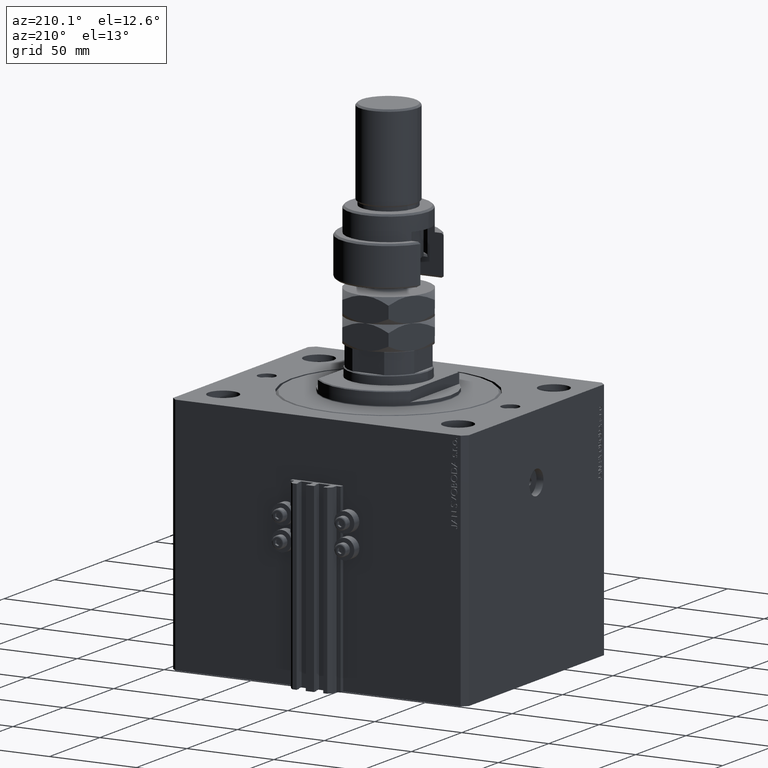
[diagram: clean part render]
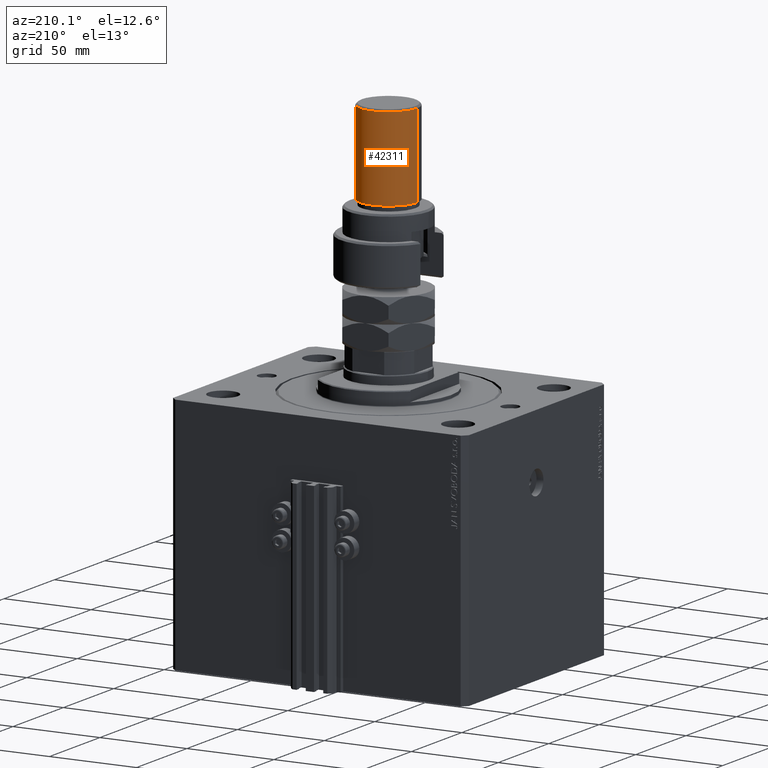
[diagram: same view with one face highlighted and labeled with its STEP entity id]
A machine part, auxiliary view. The second image highlights one B-rep face of the part: STEP entity #42311.
In plain terms, the highlighted cylindrical surface (edge-blend (fillet) strip) has radius 16.5 mm, axis along (-0, -0, -1).
Its self-contained STEP definition (entity closure, byte-faithful):
#270 = VECTOR ( 'NONE', #20096, 1000.000000000000000 ) ;
#1097 = FACE_OUTER_BOUND ( 'NONE', #27945, .T. ) ;
#3515 = ORIENTED_EDGE ( 'NONE', *, *, #8554, .T. ) ;
#4058 = LINE ( 'NONE', #31200, #29764 ) ;
#5134 = DIRECTION ( 'NONE',  ( -0.000000000000000000, -0.000000000000000000, -1.000000000000000000 ) ) ;
#5279 = ORIENTED_EDGE ( 'NONE', *, *, #39434, .T. ) ;
#8459 = VERTEX_POINT ( 'NONE', #29570 ) ;
#8554 = EDGE_CURVE ( 'NONE', #34538, #39394, #39977, .T. ) ;
#8930 = CARTESIAN_POINT ( 'NONE',  ( -16.50000000000000000, 0.000000000000000000, 89.00000000000000000 ) ) ;
#15451 = VERTEX_POINT ( 'NONE', #26205 ) ;
#16285 = LINE ( 'NONE', #8930, #270 ) ;
#18100 = AXIS2_PLACEMENT_3D ( 'NONE', #18893, #37946, #37444 ) ;
#18893 = CARTESIAN_POINT ( 'NONE',  ( 0.000000000000000000, 0.000000000000000000, 39.99999999999998579 ) ) ;
#20096 = DIRECTION ( 'NONE',  ( -0.000000000000000000, -0.000000000000000000, -1.000000000000000000 ) ) ;
#25167 = DIRECTION ( 'NONE',  ( -1.000000000000000000, 0.000000000000000000, 0.000000000000000000 ) ) ;
#25243 = ORIENTED_EDGE ( 'NONE', *, *, #30355, .F. ) ;
#26205 = CARTESIAN_POINT ( 'NONE',  ( 16.50000000000000000, 2.020667218593133100E-15, 88.00000000000001421 ) ) ;
#26285 = CARTESIAN_POINT ( 'NONE',  ( 16.50000000000000000, 2.020667218593133100E-15, 39.99999999999998579 ) ) ;
#26356 = AXIS2_PLACEMENT_3D ( 'NONE', #39735, #31366, #27802 ) ;
#27802 = DIRECTION ( 'NONE',  ( 1.000000000000000000, 0.000000000000000000, 0.000000000000000000 ) ) ;
#27945 = EDGE_LOOP ( 'NONE', ( #5279, #46407, #3515, #25243 ) ) ;
#29570 = CARTESIAN_POINT ( 'NONE',  ( -16.50000000000000000, 0.000000000000000000, 88.00000000000001421 ) ) ;
#29764 = VECTOR ( 'NONE', #46155, 1000.000000000000000 ) ;
#30355 = EDGE_CURVE ( 'NONE', #8459, #39394, #16285, .T. ) ;
#31200 = CARTESIAN_POINT ( 'NONE',  ( 16.50000000000000000, 2.020667218593133100E-15, 89.00000000000000000 ) ) ;
#31366 = DIRECTION ( 'NONE',  ( 0.000000000000000000, 0.000000000000000000, -1.000000000000000000 ) ) ;
#32037 = CYLINDRICAL_SURFACE ( 'NONE', #49127, 16.50000000000000000 ) ;
#34538 = VERTEX_POINT ( 'NONE', #26285 ) ;
#37444 = DIRECTION ( 'NONE',  ( 1.000000000000000000, 0.000000000000000000, 0.000000000000000000 ) ) ;
#37946 = DIRECTION ( 'NONE',  ( -0.000000000000000000, -0.000000000000000000, 1.000000000000000000 ) ) ;
#39394 = VERTEX_POINT ( 'NONE', #42531 ) ;
#39434 = EDGE_CURVE ( 'NONE', #8459, #15451, #48216, .T. ) ;
#39735 = CARTESIAN_POINT ( 'NONE',  ( 0.000000000000000000, 0.000000000000000000, 88.00000000000001421 ) ) ;
#39977 = CIRCLE ( 'NONE', #18100, 16.50000000000000000 ) ;
#42311 = ADVANCED_FACE ( 'NONE', ( #1097 ), #32037, .T. ) ;
#42531 = CARTESIAN_POINT ( 'NONE',  ( -16.50000000000000000, 0.000000000000000000, 39.99999999999998579 ) ) ;
#44671 = EDGE_CURVE ( 'NONE', #15451, #34538, #4058, .T. ) ;
#46155 = DIRECTION ( 'NONE',  ( -0.000000000000000000, -0.000000000000000000, -1.000000000000000000 ) ) ;
#46407 = ORIENTED_EDGE ( 'NONE', *, *, #44671, .T. ) ;
#47493 = CARTESIAN_POINT ( 'NONE',  ( 0.000000000000000000, 0.000000000000000000, 89.00000000000000000 ) ) ;
#48216 = CIRCLE ( 'NONE', #26356, 16.50000000000000000 ) ;
#49127 = AXIS2_PLACEMENT_3D ( 'NONE', #47493, #5134, #25167 ) ;